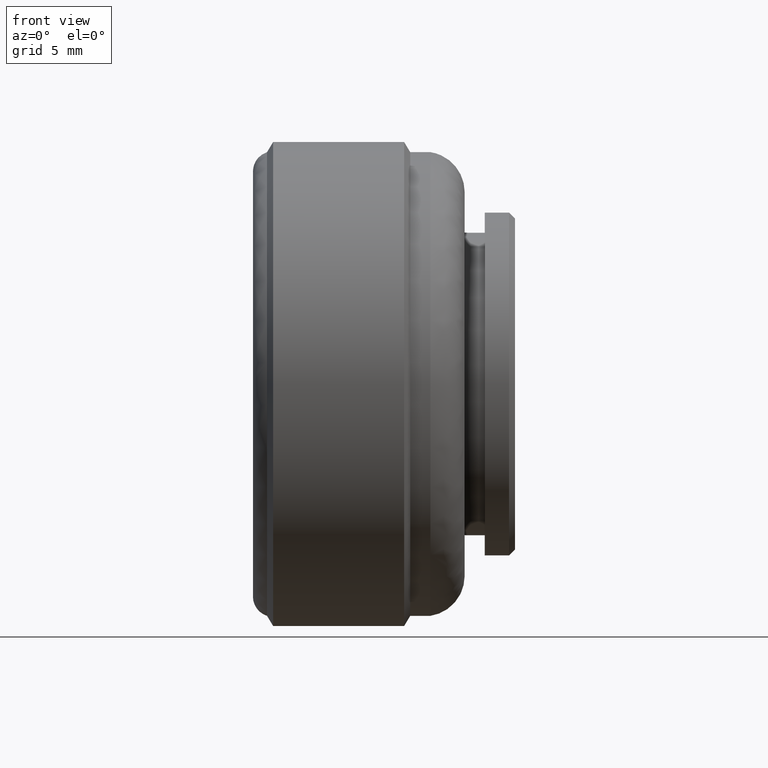
[diagram: clean part render]
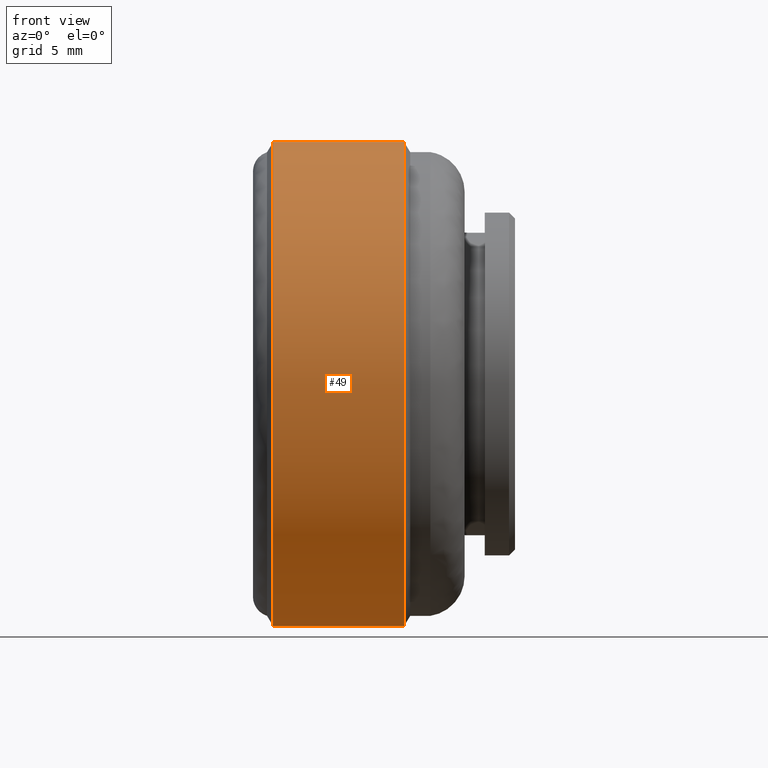
[diagram: same view with one face highlighted and labeled with its STEP entity id]
A machine part, front view. The second image highlights one B-rep face of the part: STEP entity #49.
In plain terms, the highlighted cylindrical surface (partial cylindrical patch) has radius 12 mm, axis along (1, -0, -0).
Its self-contained STEP definition (entity closure, byte-faithful):
#49=ADVANCED_FACE('',(#166),#165,.T.);
#165=CYLINDRICAL_SURFACE('',#470,1.20000000000E+01);
#166=FACE_OUTER_BOUND('',#471,.T.);
#467=CARTESIAN_POINT('',(0.00000000000E+00,0.00000000000E+00,0.00000000000E+00));
#468=DIRECTION('',(1.00000000000E+00,-0.00000000000E+00,-0.00000000000E+00));
#469=DIRECTION('',(-0.00000000000E+00,-0.00000000000E+00,-1.00000000000E+00));
#470=AXIS2_PLACEMENT_3D('',#467,#468,#469);
#471=EDGE_LOOP('',(#746,#747,#748,#749));
#746=ORIENTED_EDGE('',*,*,#856,.F.);
#747=ORIENTED_EDGE('',*,*,#863,.T.);
#748=ORIENTED_EDGE('',*,*,#865,.T.);
#749=ORIENTED_EDGE('',*,*,#864,.F.);
#856=EDGE_CURVE('',#1025,#1026,#1027,.T.);
#863=EDGE_CURVE('',#1025,#1066,#1073,.T.);
#864=EDGE_CURVE('',#1026,#1065,#1079,.T.);
#865=EDGE_CURVE('',#1066,#1065,#1085,.T.);
#1025=VERTEX_POINT('',#1392);
#1026=VERTEX_POINT('',#1393);
#1027=CIRCLE('',#1397,1.20000000000E+01);
#1065=VERTEX_POINT('',#1416);
#1066=VERTEX_POINT('',#1417);
#1073=(BOUNDED_CURVE() B_SPLINE_CURVE(1,(#1422,#1423),.UNSPECIFIED.,.F.,.F.) B_SPLINE_CURVE_WITH_KNOTS((2,2),(8.33333347523E-02,9.16666664312E-01),.UNSPECIFIED.) CURVE() GEOMETRIC_REPRESENTATION_ITEM() RATIONAL_B_SPLINE_CURVE((1.00000000000E+00,1.00000000000E+00)) REPRESENTATION_ITEM('') );
#1079=(BOUNDED_CURVE() B_SPLINE_CURVE(1,(#1424,#1425),.UNSPECIFIED.,.F.,.F.) B_SPLINE_CURVE_WITH_KNOTS((2,2),(8.33333333333E-02,9.16666666667E-01),.UNSPECIFIED.) CURVE() GEOMETRIC_REPRESENTATION_ITEM() RATIONAL_B_SPLINE_CURVE((7.50000000000E-01,7.50000000000E-01)) REPRESENTATION_ITEM('') );
#1085=CIRCLE('',#1429,1.20000000000E+01);
#1392=CARTESIAN_POINT('',(-1.20000000000E+01,-8.88178419700E-15,-1.20000000000E+01));
#1393=CARTESIAN_POINT('',(-1.20000000000E+01,0.00000000000E+00,1.20000000000E+01));
#1394=CARTESIAN_POINT('',(-1.20000000000E+01,0.00000000000E+00,0.00000000000E+00));
#1395=DIRECTION('',(-1.00000000000E+00,0.00000000000E+00,0.00000000000E+00));
#1396=DIRECTION('',(0.00000000000E+00,-1.22460635382E-16,1.00000000000E+00));
#1397=AXIS2_PLACEMENT_3D('',#1394,#1395,#1396);
#1416=CARTESIAN_POINT('',(-5.50000000000E+00,0.00000000000E+00,1.20000000000E+01));
#1417=CARTESIAN_POINT('',(-5.50000000000E+00,0.00000000000E+00,-1.20000000000E+01));
#1422=CARTESIAN_POINT('',(-1.19999999889E+01,0.00000000000E+00,-1.20000000000E+01));
#1423=CARTESIAN_POINT('',(-5.50000001836E+00,0.00000000000E+00,-1.20000000000E+01));
#1424=CARTESIAN_POINT('',(-1.20000000000E+01,-5.92118946467E-16,1.20000000000E+01));
#1425=CARTESIAN_POINT('',(-5.50000000000E+00,-5.92118946467E-16,1.20000000000E+01));
#1426=CARTESIAN_POINT('',(-5.50000000000E+00,0.00000000000E+00,0.00000000000E+00));
#1427=DIRECTION('',(-1.00000000000E+00,0.00000000000E+00,0.00000000000E+00));
#1428=DIRECTION('',(0.00000000000E+00,-1.22460635382E-16,1.00000000000E+00));
#1429=AXIS2_PLACEMENT_3D('',#1426,#1427,#1428);